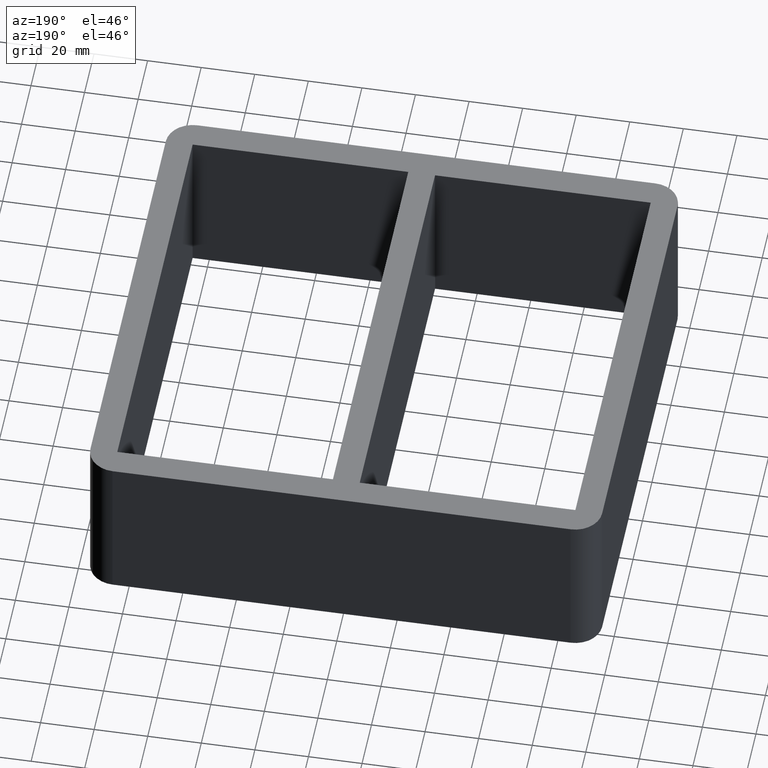
[diagram: clean part render]
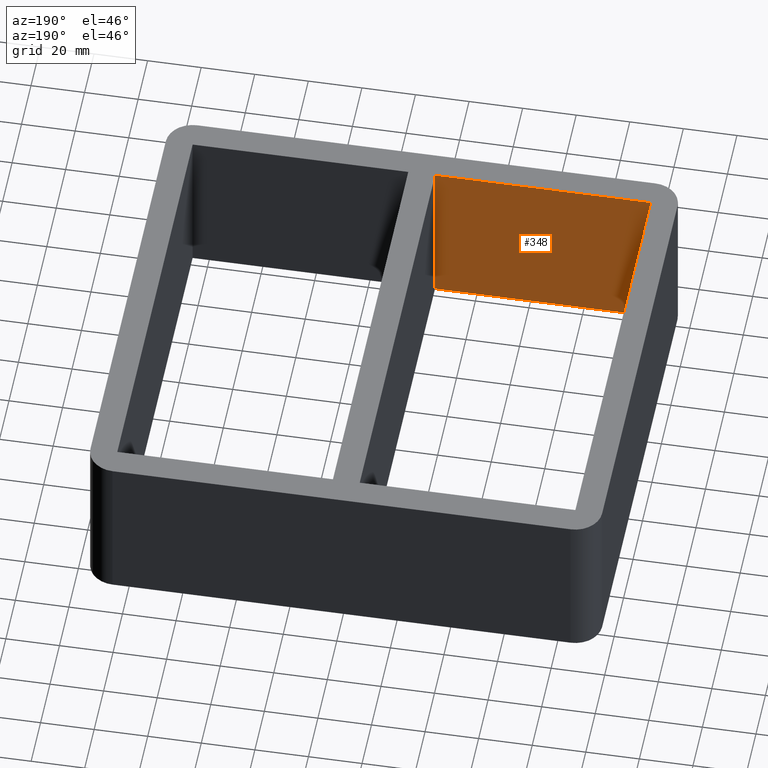
[diagram: same view with one face highlighted and labeled with its STEP entity id]
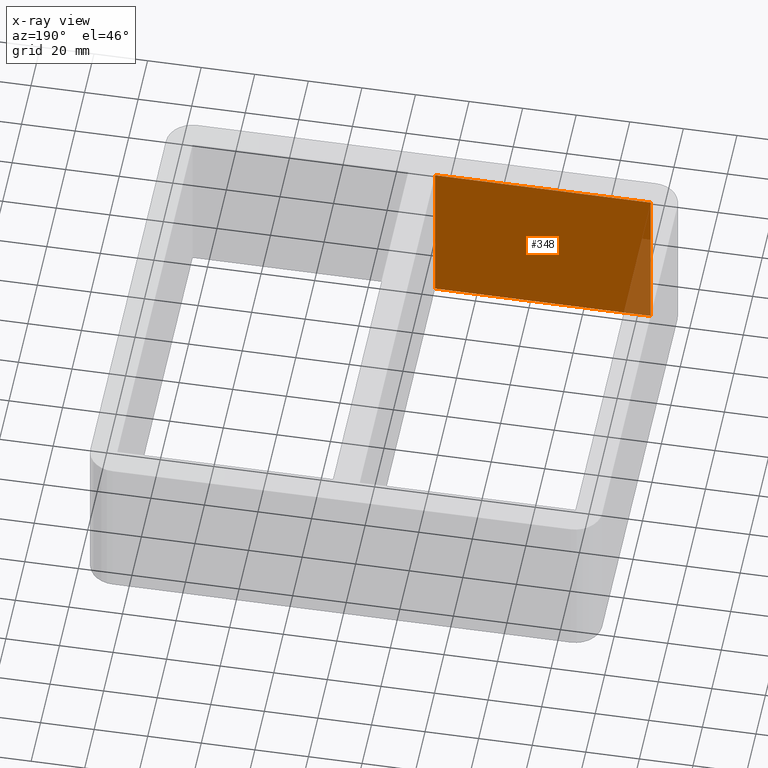
[diagram: x-ray of the same camera — body ghosted, the highlighted face saturated]
A machine part, auxiliary view. The second image highlights one B-rep face of the part: STEP entity #348.
The next image is the same camera in x-ray: the body ghosted, the highlighted face saturated — about 6% of this face is hidden behind the body in this view.
In plain terms, the highlighted planar face has unit normal (0, -1, 0).
Its self-contained STEP definition (entity closure, byte-faithful):
#38=FACE_OUTER_BOUND('',#56,.T.);
#56=EDGE_LOOP('',(#259,#260,#261,#262));
#84=LINE('',#529,#124);
#92=LINE('',#544,#132);
#93=LINE('',#546,#133);
#94=LINE('',#547,#134);
#124=VECTOR('',#430,10.);
#132=VECTOR('',#442,10.);
#133=VECTOR('',#445,10.);
#134=VECTOR('',#446,10.);
#159=VERTEX_POINT('',#525);
#161=VERTEX_POINT('',#528);
#165=VERTEX_POINT('',#540);
#166=VERTEX_POINT('',#542);
#196=EDGE_CURVE('',#161,#159,#84,.T.);
#204=EDGE_CURVE('',#166,#165,#92,.T.);
#205=EDGE_CURVE('',#165,#159,#93,.T.);
#206=EDGE_CURVE('',#161,#166,#94,.T.);
#259=ORIENTED_EDGE('',*,*,#205,.F.);
#260=ORIENTED_EDGE('',*,*,#204,.F.);
#261=ORIENTED_EDGE('',*,*,#206,.F.);
#262=ORIENTED_EDGE('',*,*,#196,.T.);
#334=PLANE('',#386);
#348=ADVANCED_FACE('',(#38),#334,.F.);
#386=AXIS2_PLACEMENT_3D('',#545,#443,#444);
#430=DIRECTION('',(0.,0.,-1.));
#442=DIRECTION('',(0.,0.,-1.));
#443=DIRECTION('center_axis',(0.,-1.,0.));
#444=DIRECTION('ref_axis',(-1.,0.,0.));
#445=DIRECTION('',(1.,0.,0.));
#446=DIRECTION('',(-1.,0.,0.));
#525=CARTESIAN_POINT('',(-5.00000000000181,-79.7500000000093,-60.));
#528=CARTESIAN_POINT('',(-5.00000000000181,-79.7500000000093,0.));
#529=CARTESIAN_POINT('',(-5.00000000000181,-79.7500000000093,0.));
#540=CARTESIAN_POINT('',(-85.5000000000018,-79.7500000000093,-60.));
#542=CARTESIAN_POINT('',(-85.5000000000018,-79.7500000000093,0.));
#544=CARTESIAN_POINT('',(-85.5000000000018,-79.7500000000093,0.));
#545=CARTESIAN_POINT('Origin',(-5.00000000000181,-79.7500000000093,0.));
#546=CARTESIAN_POINT('',(-2.50000000000083,-79.7500000000093,-60.));
#547=CARTESIAN_POINT('',(-2.50000000000083,-79.7500000000093,0.));